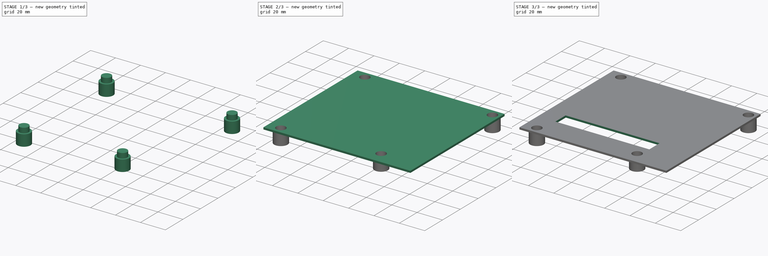
[diagram: build sequence overview — one tinted view per stage of 3, left to right]
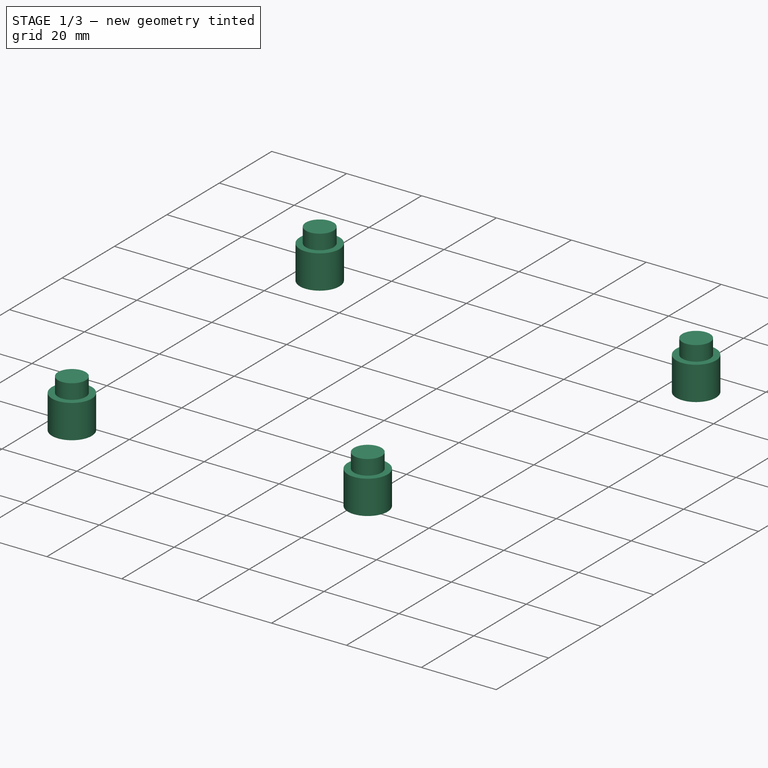
[diagram: stage 1 of 3 — iso view after this stage's code; geometry added in this stage tinted green]
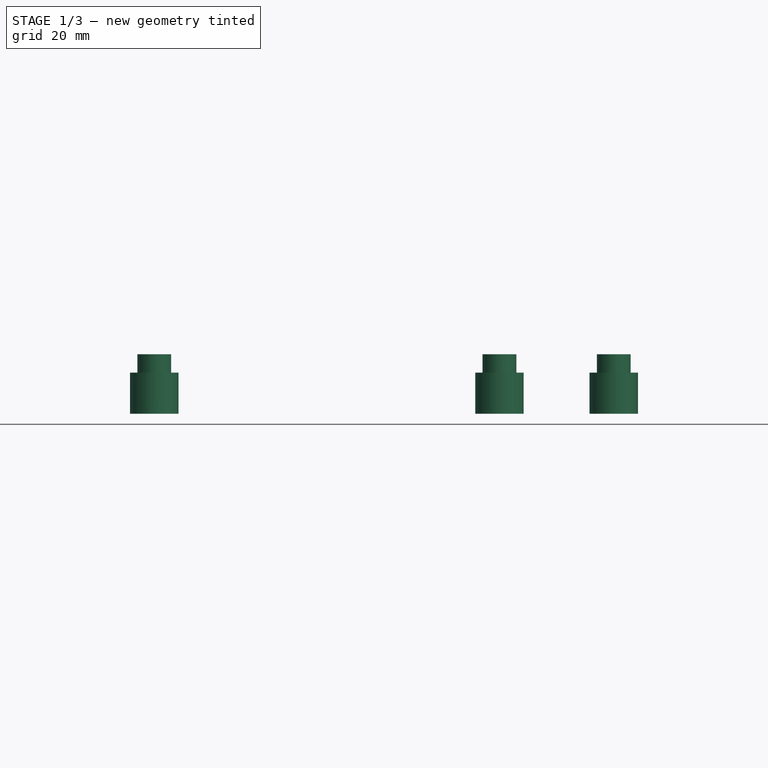
[diagram: stage 1 of 3 — front view after this stage's code; geometry added in this stage tinted green]
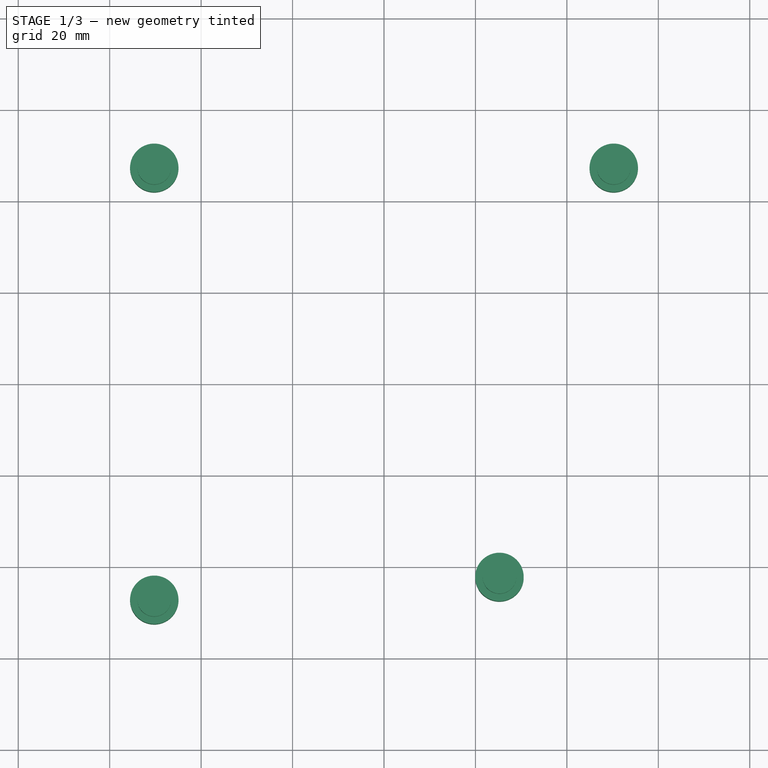
[diagram: stage 1 of 3 — top view after this stage's code; geometry added in this stage tinted green]
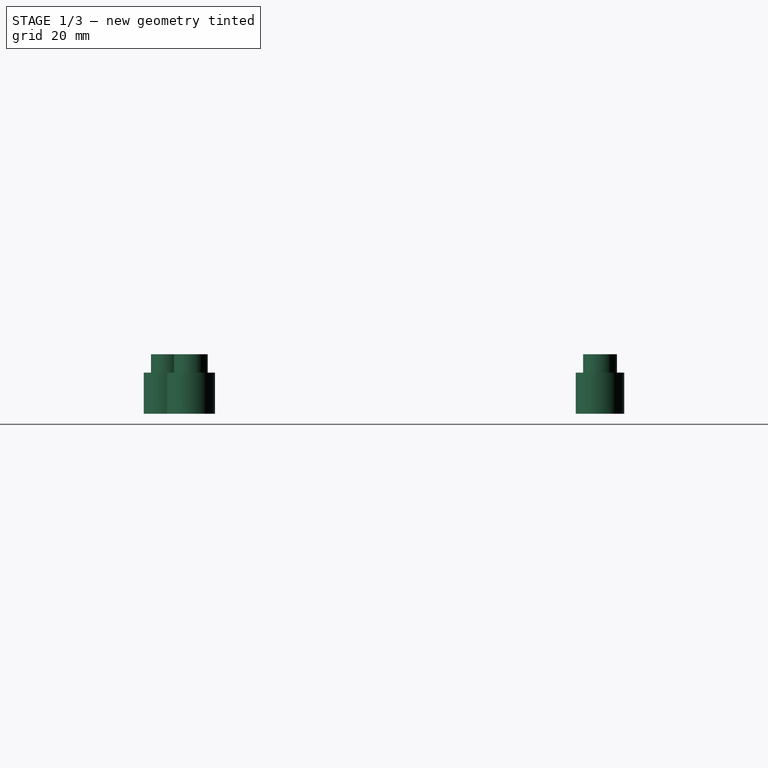
[diagram: stage 1 of 3 — right view after this stage's code; geometry added in this stage tinted green]
FCSTD DOCUMENT  (FreeCAD 0.16R6700 (Git))
Label: colibri-v2-cover
License: All rights reserved
LicenseURL: http://en.wikipedia.org/wiki/All_rights_reserved
objects: Sketcher::SketchObject×3, Part::Extrusion×3, Part::Cut×2, Part::Box×1, Part::Fuse×1
note: 10 computed .brp shape members not serialized (recipe doc carries the construction recipe); baked Part::Feature solids carry a one-line shape summary decoded from their .brp

FEATURE [Part::Extrusion] Extrude  label="Extrude Mount Columns"
  Base = -> Sketch006
  Dir = (0,0,-9)
  Solid = true
FEATURE [Sketcher::SketchObject] Sketch007  label="Sketch Drill"
  Placement = pos=(0,0,2) rot=(0,0,1;0rad)
  sketch-geometry (9):
    g0: LineSegment [constr] StartX=-50.25 StartY=47.25 StartZ=0 EndX=50.25 EndY=47.25 EndZ=0
    g1: LineSegment [constr] StartX=50.25 StartY=47.25 StartZ=0 EndX=50.25 EndY=-47.25 EndZ=0
    g2: LineSegment [constr] StartX=50.25 StartY=-47.25 StartZ=0 EndX=-50.25 EndY=-47.25 EndZ=0
    g3: LineSegment [constr] StartX=-50.25 StartY=-47.25 StartZ=0 EndX=-50.25 EndY=47.25 EndZ=0
    g4: GeomPoint [constr] X=50.25 Y=-47.25 Z=0
    g5: Circle CenterX=-50.25 CenterY=-47.25 CenterZ=0 NormalX=0 NormalY=0 NormalZ=1 Radius=3.7
    g6: Circle CenterX=50.25 CenterY=47.25 CenterZ=0 NormalX=0 NormalY=0 NormalZ=1 Radius=3.7
    g7: Circle CenterX=-50.25 CenterY=47.25 CenterZ=0 NormalX=0 NormalY=0 NormalZ=1 Radius=3.7
    g8: Circle CenterX=25.25 CenterY=-42.25 CenterZ=0 NormalX=0 NormalY=0 NormalZ=1 Radius=3.7
  constraints (23):
    c: Coincident(g0,g1)
    c: Coincident(g1,g2)
    c: Coincident(g3,g0)
    c: Horizontal(g0)
    c: Horizontal(g2)
    c: Vertical(g1)
    c: Vertical(g3)
    c: Symmetric(g0,g0,g-2)
    c: Symmetric(g0,g2,g-1)
    c: DistanceX(g0,g0) = 100.5
    c: PointOnObject(g4,g1)
    c: DistanceY(g4,g0) = 94.5
    c: Coincident(g5,g2)
    c: Coincident(g6,g0)
    c: Coincident(g4,g1)
    c: Radius(g7) = 3.7
    c: Equal(g7,g6)
    c: Coincident(g3,g2)
    c: Coincident(g7,g0)
    c: Equal(g5,g7)
    c: Equal(g8,g7)
    c: DistanceY(g2,g8) = 5
    c: DistanceX(g2,g8) = 75.5
FEATURE [Part::Extrusion] Extrude001
  Base = -> Sketch007
  Dir = (0,0,-11.5)
  Placement = pos=(0,0,4) rot=(0,0,1;0rad)
  Solid = true
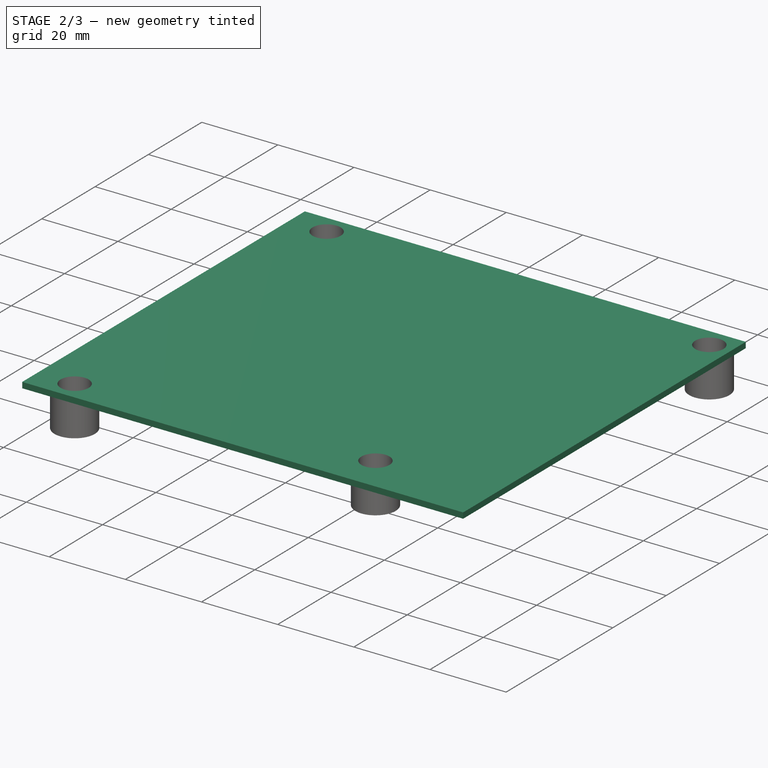
[diagram: stage 2 of 3 — iso view after this stage's code; geometry added in this stage tinted green]
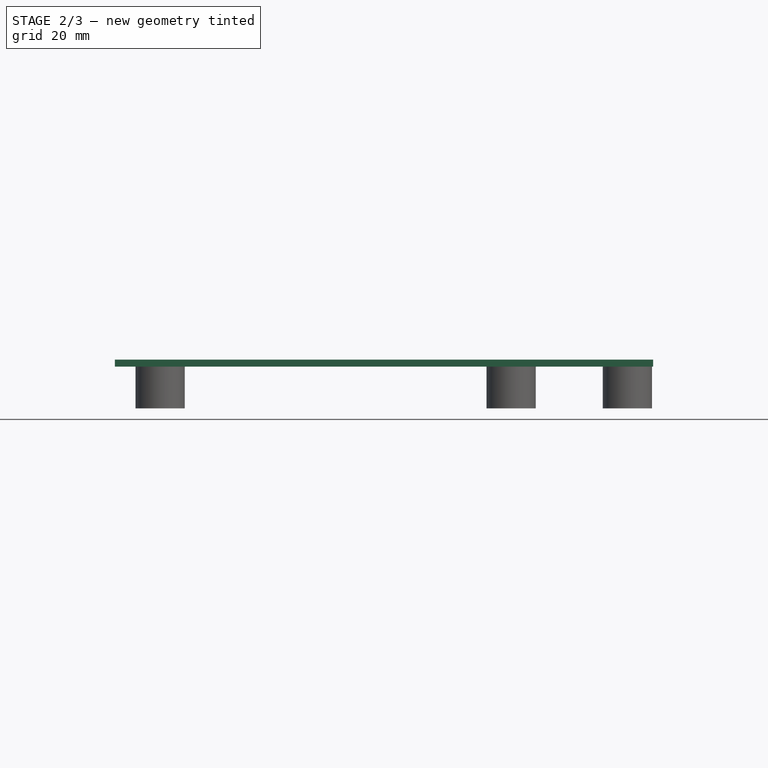
[diagram: stage 2 of 3 — front view after this stage's code; geometry added in this stage tinted green]
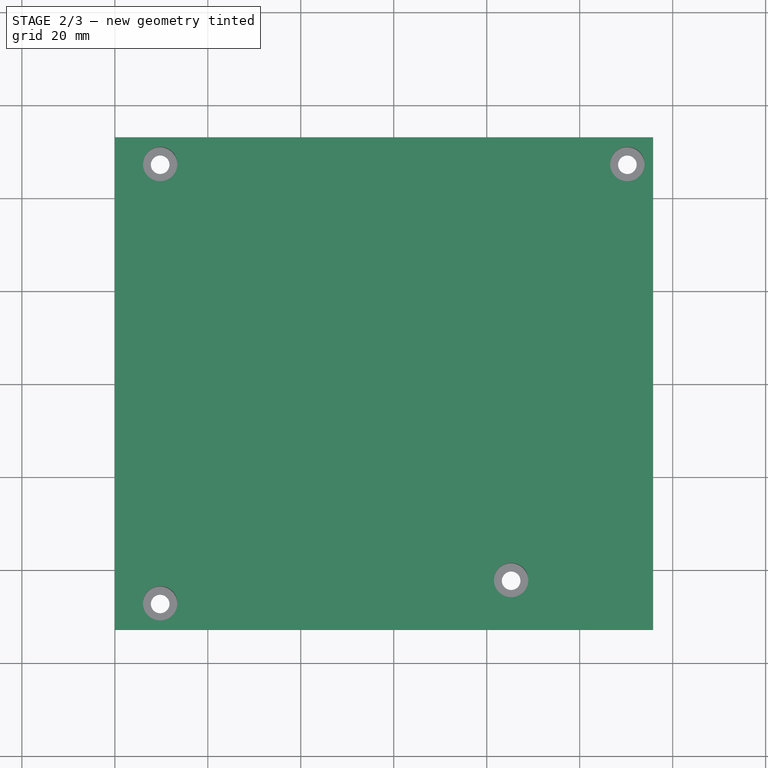
[diagram: stage 2 of 3 — top view after this stage's code; geometry added in this stage tinted green]
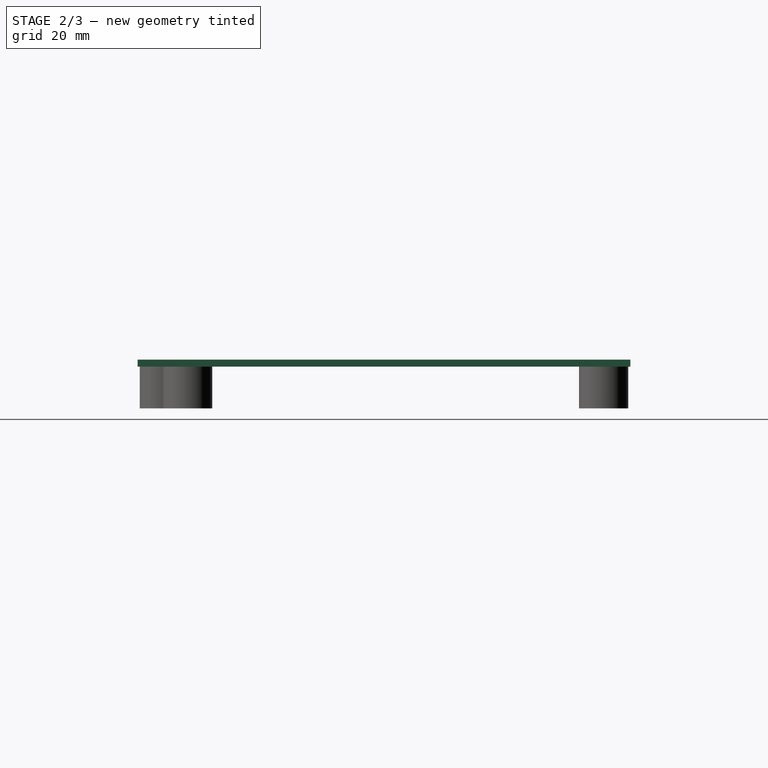
[diagram: stage 2 of 3 — right view after this stage's code; geometry added in this stage tinted green]
FEATURE [Sketcher::SketchObject] Sketch006  label="Mount Columns Sketch"
  Placement = pos=(0,0,2) rot=(0,0,1;0rad)
  sketch-geometry (13):
    g0: LineSegment [constr] StartX=-50.25 StartY=47.25 StartZ=0 EndX=50.25 EndY=47.25 EndZ=0
    g1: LineSegment [constr] StartX=50.25 StartY=47.25 StartZ=0 EndX=50.25 EndY=-47.25 EndZ=0
    g2: LineSegment [constr] StartX=50.25 StartY=-47.25 StartZ=0 EndX=-50.25 EndY=-47.25 EndZ=0
    g3: LineSegment [constr] StartX=-50.25 StartY=-47.25 StartZ=0 EndX=-50.25 EndY=47.25 EndZ=0
    g4: GeomPoint [constr] X=50.25 Y=-47.25 Z=0
    g5: Circle CenterX=-50.25 CenterY=-47.25 CenterZ=0 NormalX=0 NormalY=0 NormalZ=1 Radius=5.3
    g6: Circle CenterX=50.25 CenterY=47.25 CenterZ=0 NormalX=0 NormalY=0 NormalZ=1 Radius=5.3
    g7: Circle CenterX=-50.25 CenterY=47.25 CenterZ=0 NormalX=0 NormalY=0 NormalZ=1 Radius=5.3
    g8: Circle CenterX=25.25 CenterY=-42.25 CenterZ=0 NormalX=0 NormalY=0 NormalZ=1 Radius=5.3
    g9: Circle CenterX=-50.25 CenterY=47.25 CenterZ=0 NormalX=0 NormalY=0 NormalZ=1 Radius=2
    g10: Circle CenterX=50.25 CenterY=47.25 CenterZ=0 NormalX=0 NormalY=0 NormalZ=1 Radius=2
    g11: Circle CenterX=25.25 CenterY=-42.25 CenterZ=0 NormalX=0 NormalY=0 NormalZ=1 Radius=2
    g12: Circle CenterX=-50.25 CenterY=-47.25 CenterZ=0 NormalX=0 NormalY=0 NormalZ=1 Radius=2
  constraints (31):
    c: Coincident(g0,g1)
    c: Coincident(g1,g2)
    c: Coincident(g3,g0)
    c: Horizontal(g0)
    c: Horizontal(g2)
    c: Vertical(g1)
    c: Vertical(g3)
    c: Symmetric(g0,g0,g-2)
    c: Symmetric(g0,g2,g-1)
    c: DistanceX(g0,g0) = 100.5
    c: PointOnObject(g4,g1)
    c: DistanceY(g4,g0) = 94.5
    c: Coincident(g5,g2)
    c: Coincident(g6,g0)
    c: Coincident(g4,g1)
    c: Radius(g7) = 5.3
    c: Equal(g7,g6)
    c: Coincident(g3,g2)
    c: Coincident(g7,g0)
    c: Equal(g5,g7)
    c: Equal(g8,g7)
    c: DistanceY(g2,g8) = 5
    c: DistanceX(g2,g8) = 75.5
    c: Coincident(g9,g0)
    c: Coincident(g10,g0)
    c: Coincident(g11,g8)
    c: Coincident(g12,g2)
    c: Radius(g9) = 2
    c: Equal(g9,g10)
    c: Equal(g10,g11)
    c: Equal(g11,g12)
FEATURE [Part::Box] Box001  label="Cover"
  Height = 1.5
  Length = 115.8
  Placement = pos=(-60,-53,2) rot=(0,0,1;0rad)
  Width = 106
FEATURE [Part::Fuse] Fusion
  Base = -> Box001
  Tool = -> Extrude
FEATURE [Part::Cut] Cut
  Base = -> Fusion
  Tool = -> Extrude001
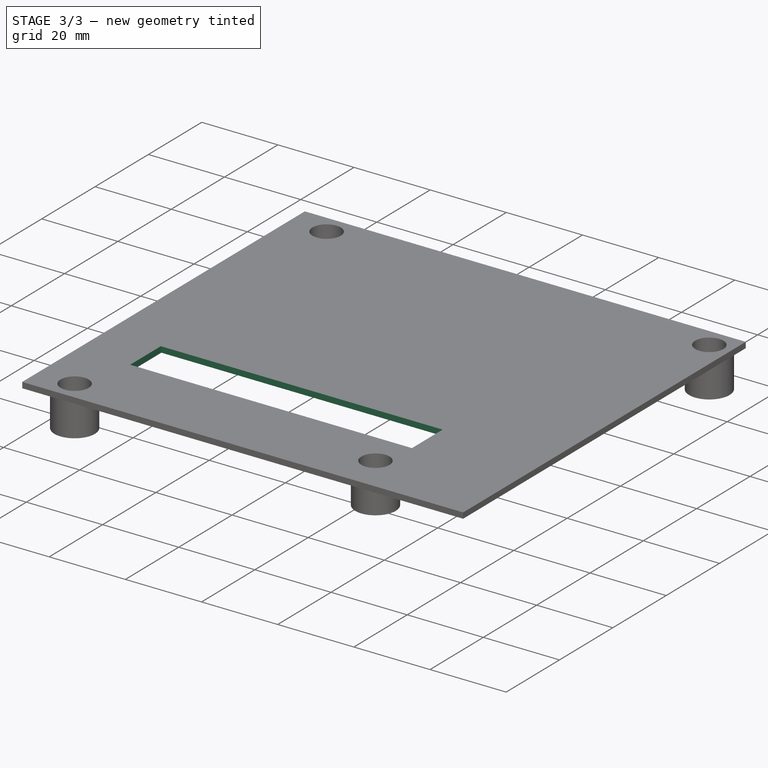
[diagram: stage 3 of 3 — iso view after this stage's code; geometry added in this stage tinted green]
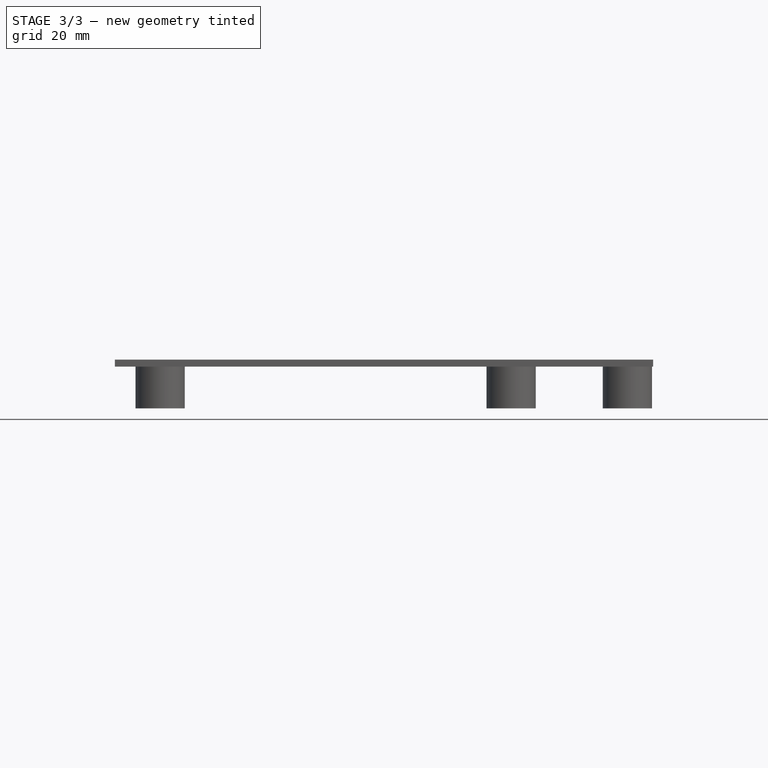
[diagram: stage 3 of 3 — front view after this stage's code; geometry added in this stage tinted green]
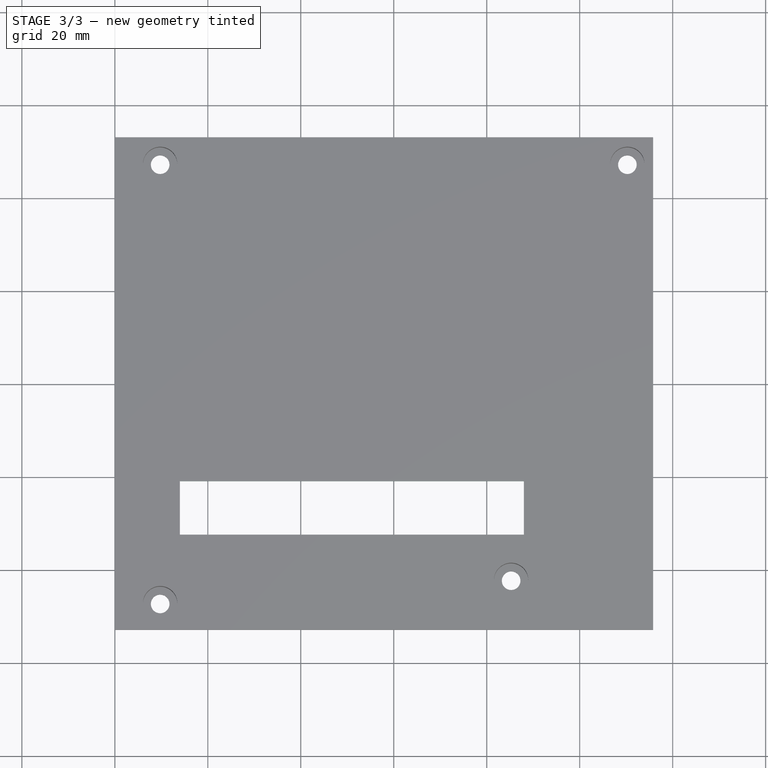
[diagram: stage 3 of 3 — top view after this stage's code; geometry added in this stage tinted green]
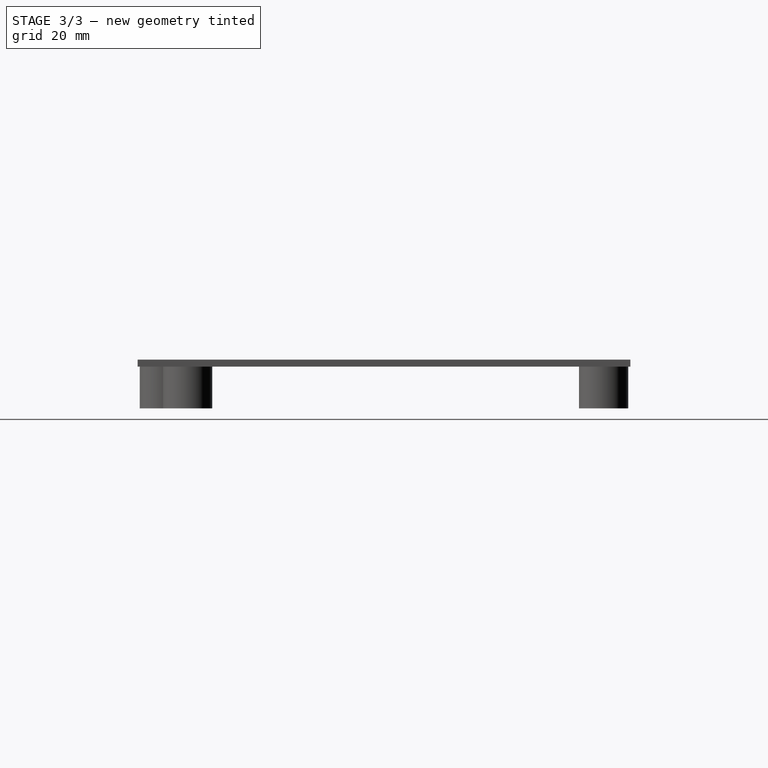
[diagram: stage 3 of 3 — right view after this stage's code; geometry added in this stage tinted green]
FEATURE [Sketcher::SketchObject] Sketch
  Placement = pos=(0,0,3.5) rot=(0,0,1;0rad)
  Support = -> Cut [Face3]
  sketch-geometry (4):
    g0: LineSegment StartX=-46 StartY=-21 StartZ=0 EndX=28 EndY=-21 EndZ=0
    g1: LineSegment StartX=28 StartY=-21 StartZ=0 EndX=28 EndY=-32.5 EndZ=0
    g2: LineSegment StartX=28 StartY=-32.5 StartZ=0 EndX=-46 EndY=-32.5 EndZ=0
    g3: LineSegment StartX=-46 StartY=-32.5 StartZ=0 EndX=-46 EndY=-21 EndZ=0
  constraints (12):
    c: Coincident(g0,g1)
    c: Coincident(g1,g2)
    c: Coincident(g2,g3)
    c: Coincident(g3,g0)
    c: Horizontal(g0)
    c: Horizontal(g2)
    c: Vertical(g1)
    c: Vertical(g3)
    c: DistanceX(g-2,g0) = -46
    c: Distance(g2) = 74
    c: Distance(g1) = 11.5
    c: DistanceY(g-1,g0) = -21
FEATURE [Part::Extrusion] Extrude002
  Base = -> Sketch
  Dir = (0,0,-10)
  Solid = true
FEATURE [Part::Cut] Cut001
  Base = -> Cut
  Tool = -> Extrude002
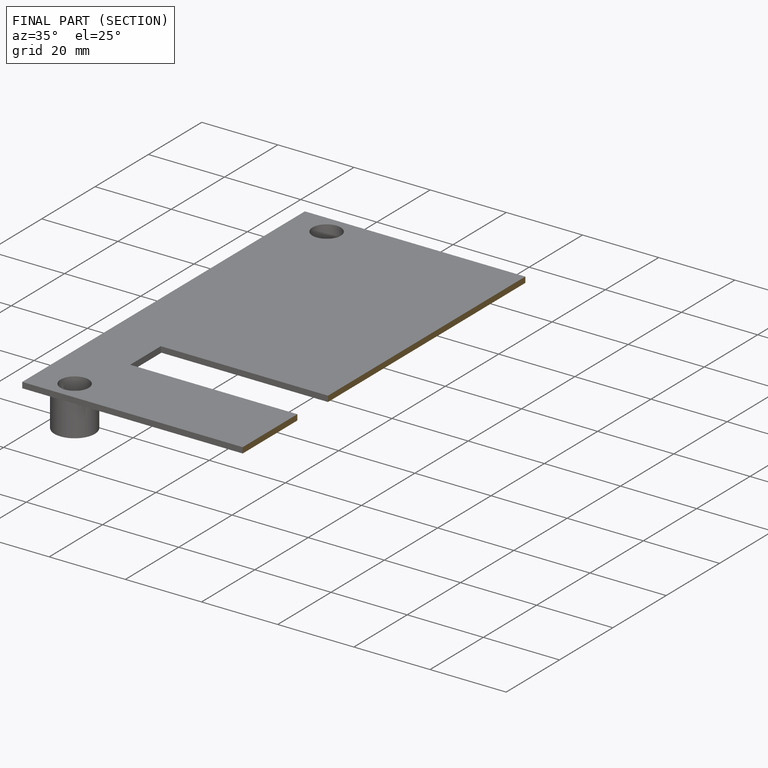
[diagram: finished part — half-section view (interior)]
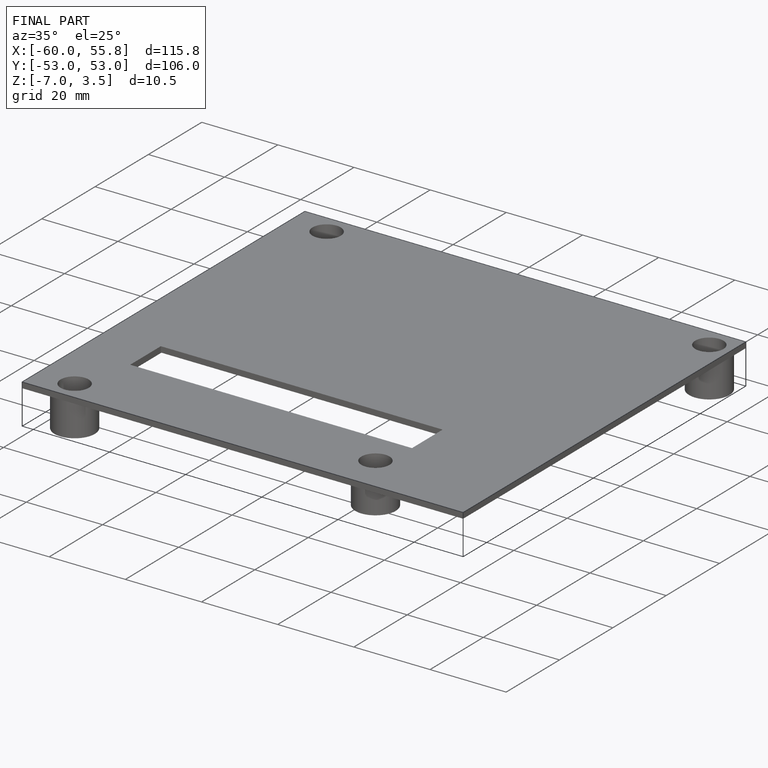
[diagram: finished part — iso view with bounding-box wireframe]
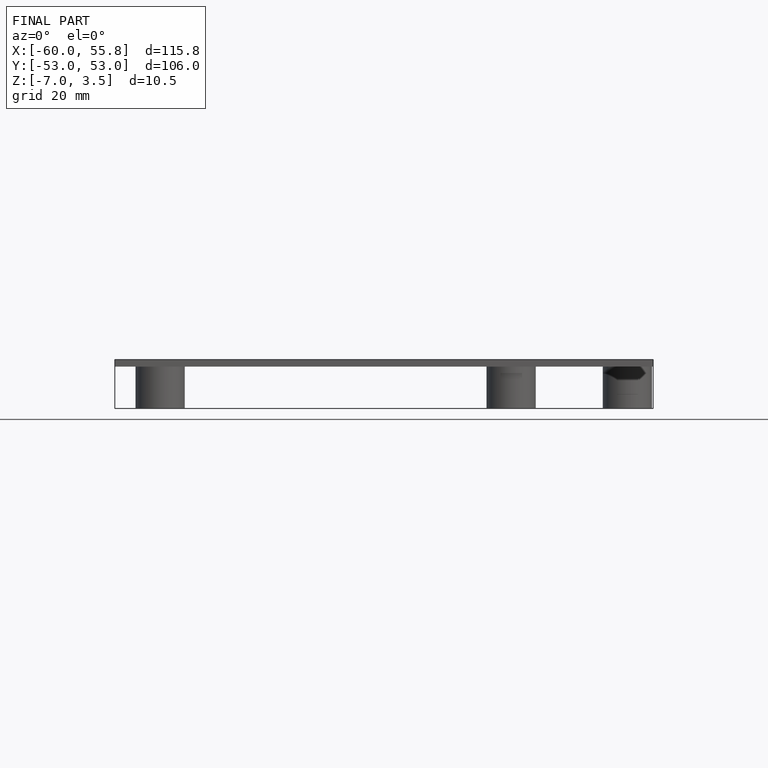
[diagram: finished part — front view with bounding-box wireframe]
